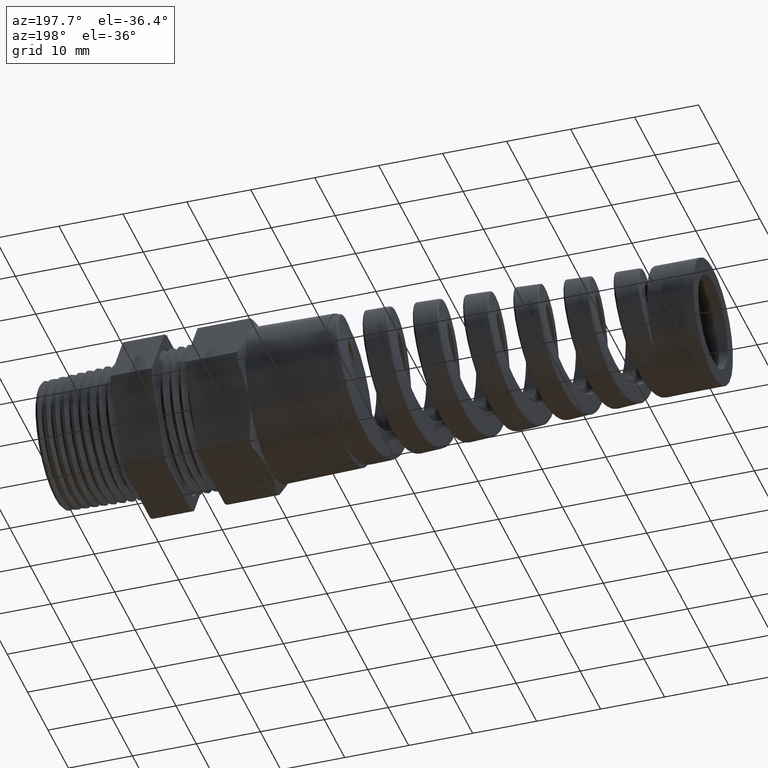
[diagram: clean part render]
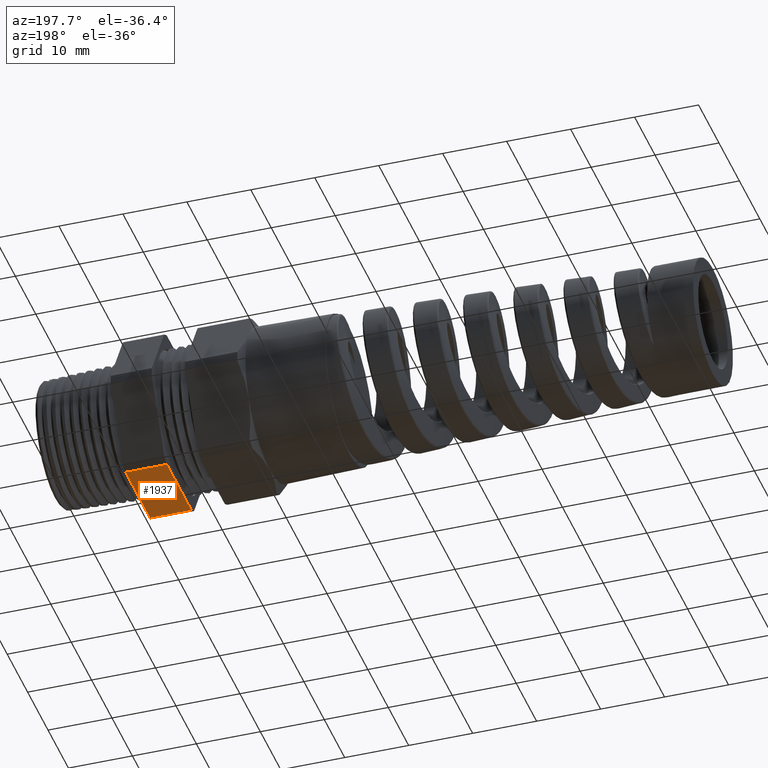
[diagram: same view with one face highlighted and labeled with its STEP entity id]
A machine part, auxiliary view. The second image highlights one B-rep face of the part: STEP entity #1937.
In plain terms, the highlighted planar face has unit normal (0, 0, -1).
Its self-contained STEP definition (entity closure, byte-faithful):
#565 = EDGE_CURVE ( 'NONE', #1222, #7738, #8023, .T. ) ;
#1218 = VERTEX_POINT ( 'NONE', #8636 ) ;
#1221 = EDGE_CURVE ( 'NONE', #1218, #1222, #8701, .T. ) ;
#1222 = VERTEX_POINT ( 'NONE', #8692 ) ;
#1234 = EDGE_CURVE ( 'NONE', #1218, #7679, #8673, .T. ) ;
#1817 = EDGE_LOOP ( 'NONE', ( #2115, #2113, #2117, #2119 ) ) ;
#1937 = ADVANCED_FACE ( 'NONE', ( #9954 ), #9953, .T. ) ;
#2113 = ORIENTED_EDGE ( 'NONE', *, *, #565, .T. ) ;
#2115 = ORIENTED_EDGE ( 'NONE', *, *, #1221, .T. ) ;
#2117 = ORIENTED_EDGE ( 'NONE', *, *, #7737, .F. ) ;
#2119 = ORIENTED_EDGE ( 'NONE', *, *, #1234, .F. ) ;
#6193 = CARTESIAN_POINT ( 'NONE',  ( 0.0000000000000000000, -0.2370589800028678500, -0.4699999999999997500 ) ) ;
#6276 = CARTESIAN_POINT ( 'NONE',  ( 0.0000000000000000000, 0.2370589800028677400, -0.4699999999999999200 ) ) ;
#6277 = DIRECTION ( 'NONE',  ( 0.0000000000000000000, 1.000000000000000000, 0.0000000000000000000 ) ) ;
#6278 = VECTOR ( 'NONE', #6277, 39.37007874015748100 ) ;
#6279 = CARTESIAN_POINT ( 'NONE',  ( 0.0000000000000000000, -0.2370589800028677400, -0.4699999999999999200 ) ) ;
#6280 = LINE ( 'NONE', #6279, #6278 ) ;
#7679 = VERTEX_POINT ( 'NONE', #6193 ) ;
#7737 = EDGE_CURVE ( 'NONE', #7679, #7738, #6280, .T. ) ;
#7738 = VERTEX_POINT ( 'NONE', #6276 ) ;
#8020 = DIRECTION ( 'NONE',  ( 1.000000000000000000, 0.0000000000000000000, 0.0000000000000000000 ) ) ;
#8021 = VECTOR ( 'NONE', #8020, 39.37007874015748100 ) ;
#8022 = CARTESIAN_POINT ( 'NONE',  ( -2.316272878851058700, 0.2370589800028677400, -0.4699999999999999200 ) ) ;
#8023 = LINE ( 'NONE', #8022, #8021 ) ;
#8636 = CARTESIAN_POINT ( 'NONE',  ( -0.2537313432835821600, -0.2370589800028678500, -0.4699999999999997500 ) ) ;
#8670 = DIRECTION ( 'NONE',  ( 1.000000000000000000, 0.0000000000000000000, 0.0000000000000000000 ) ) ;
#8671 = VECTOR ( 'NONE', #8670, 39.37007874015748100 ) ;
#8672 = CARTESIAN_POINT ( 'NONE',  ( -2.316272878851058700, -0.2370589800028678500, -0.4699999999999997500 ) ) ;
#8673 = LINE ( 'NONE', #8672, #8671 ) ;
#8692 = CARTESIAN_POINT ( 'NONE',  ( -0.2537313432835821600, 0.2370589800028677400, -0.4699999999999999200 ) ) ;
#8693 = DIRECTION ( 'NONE',  ( 0.0000000000000000000, 1.000000000000000000, 0.0000000000000000000 ) ) ;
#8694 = VECTOR ( 'NONE', #8693, 39.37007874015748100 ) ;
#8695 = CARTESIAN_POINT ( 'NONE',  ( -0.2537313432835821000, 0.4399000000000000100, -0.4699999999999999200 ) ) ;
#8701 = LINE ( 'NONE', #8695, #8694 ) ;
#9948 = DIRECTION ( 'NONE',  ( -1.000000000000000000, 0.0000000000000000000, 0.0000000000000000000 ) ) ;
#9949 = DIRECTION ( 'NONE',  ( 0.0000000000000000000, 0.0000000000000000000, -1.000000000000000000 ) ) ;
#9950 = CARTESIAN_POINT ( 'NONE',  ( -2.316272878851058700, -0.2370589800028677400, -0.4699999999999999200 ) ) ;
#9952 = AXIS2_PLACEMENT_3D ( 'NONE', #9950, #9949, #9948 ) ;
#9953 = PLANE ( 'NONE',  #9952 ) ;
#9954 = FACE_OUTER_BOUND ( 'NONE', #1817, .T. ) ;